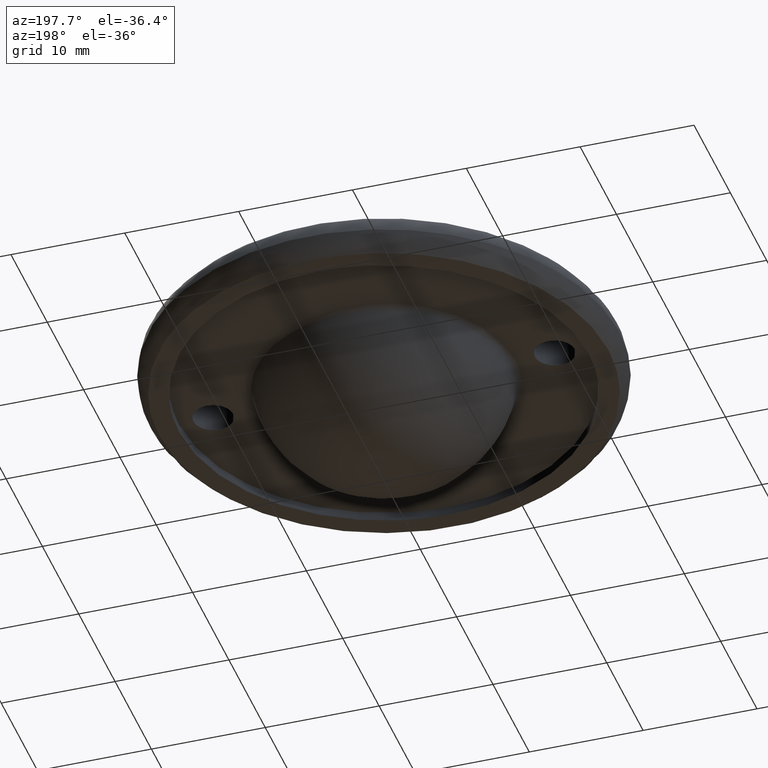
[diagram: clean part render]
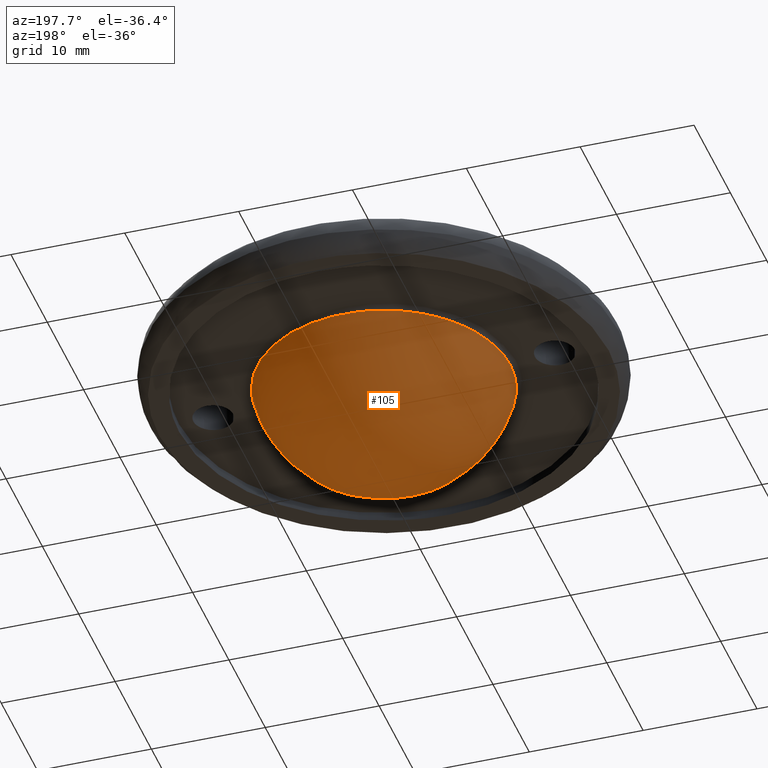
[diagram: same view with one face highlighted and labeled with its STEP entity id]
A machine part, auxiliary view. The second image highlights one B-rep face of the part: STEP entity #105.
In plain terms, the highlighted face is a freeform B-spline surface patch.
Its self-contained STEP definition (entity closure, byte-faithful):
#5=CARTESIAN_POINT('',(-7.978826325178979,7.978826031782090,5.018244158507591));
#6=CARTESIAN_POINT('',(-5.627348453053467,11.254697259605180,1.093161928690669));
#7=CARTESIAN_POINT('',(5.627348521134625,11.254697259605157,1.093162115942437));
#8=CARTESIAN_POINT('',(7.978826262651791,7.978826031782055,5.018244424005513));
#9=CARTESIAN_POINT('',(-11.254696940147511,5.627348772511203,1.093161050047696));
#10=CARTESIAN_POINT('',(-9.547110129751763,9.547111915838805,-8.299998827016179));
#11=CARTESIAN_POINT('',(9.547110510393251,9.547111915838761,-8.299998509333118));
#12=CARTESIAN_POINT('',(11.254697008228675,5.627348772511151,1.093161424551232));
#13=CARTESIAN_POINT('',(-11.254696940147511,-5.627348201676780,1.093159480013511));
#14=CARTESIAN_POINT('',(-9.547110129751763,-9.547108724306025,-8.300001490666670));
#15=CARTESIAN_POINT('',(9.547110510393251,-9.547108724306069,-8.300001172983610));
#16=CARTESIAN_POINT('',(11.254697008228675,-5.627348201676832,1.093159854517047));
#17=CARTESIAN_POINT('',(-7.978826325178979,-7.978826556048523,5.018241932409446));
#18=CARTESIAN_POINT('',(-5.627348453053467,-11.254696688770787,1.093158788622306));
#19=CARTESIAN_POINT('',(5.627348521134625,-11.254696688770812,1.093158975874074));
#20=CARTESIAN_POINT('',(7.978826262651791,-7.978826556048560,5.018242197907369));
#28=(BOUNDED_SURFACE()B_SPLINE_SURFACE(2,2,((#5,#9,#13,#17),(#6,#10,#14,#18),(#7,#11,#15,#19),(#8,#12,#16,#20)),.UNSPECIFIED.,.F.,.F.,.U.)B_SPLINE_SURFACE_WITH_KNOTS((3,1,3),(3,1,3),(0.0,14.161932889601809,28.323865779203629),(0.0,14.161932889601820,28.323865779203629),.UNSPECIFIED.)GEOMETRIC_REPRESENTATION_ITEM()RATIONAL_B_SPLINE_SURFACE(((2.393111459852958,1.696555729926479,1.696555729926479,2.393111459852958),(1.696555729926479,1.0,1.0,1.696555729926479),(1.696555729926479,1.0,1.0,1.696555729926479),(2.393111459852958,1.696555729926479,1.696555729926479,2.393111459852958)))REPRESENTATION_ITEM('')SURFACE());
#29=CARTESIAN_POINT('',(-11.111008682785920,0.0,0.418901054543620));
#30=VERTEX_POINT('',#29);
#31=CARTESIAN_POINT('',(-10.795808709323371,2.627742430968604,0.418901426358730));
#32=VERTEX_POINT('',#31);
#33=CARTESIAN_POINT('',(-11.111008682785920,0.0,0.418901054543620));
#34=CARTESIAN_POINT('',(-11.111166298497460,0.884308275972317,0.418901177892286));
#35=CARTESIAN_POINT('',(-11.005028361020310,1.768548853188827,0.418901303010024));
#36=CARTESIAN_POINT('',(-10.795808709323371,2.627742430968604,0.418901426358730));
#37=B_SPLINE_CURVE_WITH_KNOTS('',3,(#33,#34,#35,#36),.UNSPECIFIED.,.F.,.U.,(4,4),(7.331340E-010,2.652882171507486),.UNSPECIFIED.);
#38=EDGE_CURVE('',#30,#32,#37,.T.);
#39=ORIENTED_EDGE('',*,*,#38,.T.);
#40=CARTESIAN_POINT('',(11.111008682785920,0.0,0.418901054543620));
#41=VERTEX_POINT('',#40);
#42=CARTESIAN_POINT('',(-10.795808709323371,2.627742430968604,0.418901426358730));
#43=CARTESIAN_POINT('',(-10.632004407543450,3.301041703677720,0.418901424969294));
#44=CARTESIAN_POINT('',(-10.198439614929480,4.556997961496044,0.418901420235664));
#45=CARTESIAN_POINT('',(-9.363781159218885,6.046042253990842,0.418901409258806));
#46=CARTESIAN_POINT('',(-8.501916358289046,7.186830405100512,0.418901397127786));
#47=CARTESIAN_POINT('',(-7.493378854738742,8.259389316225596,0.418901382405732));
#48=CARTESIAN_POINT('',(-6.219503107531087,9.265907034074539,0.418901363111526));
#49=CARTESIAN_POINT('',(-4.526509581445540,10.206493252279911,0.418901336672401));
#50=CARTESIAN_POINT('',(-3.032939788227789,10.729869619460400,0.418901312732659));
#51=CARTESIAN_POINT('',(-1.527806156516755,11.027480929013480,0.418901288146311));
#52=CARTESIAN_POINT('',(-0.081419047186149,11.154527457193300,0.418901264200581));
#53=CARTESIAN_POINT('',(1.727526684426739,11.035859753288729,0.418901233695433));
#54=CARTESIAN_POINT('',(3.650737032564044,10.556817728525850,0.418901200555167));
#55=CARTESIAN_POINT('',(5.477047260891141,9.735335765841940,0.418901168348933));
#56=CARTESIAN_POINT('',(6.920114994678916,8.745276689960246,0.418901142216715));
#57=CARTESIAN_POINT('',(8.137299871194497,7.614259456548853,0.418901119581030));
#58=CARTESIAN_POINT('',(9.060990866343213,6.492483046452280,0.418901101874583));
#59=CARTESIAN_POINT('',(9.940697677338372,5.057525181443659,0.418901084275510));
#60=CARTESIAN_POINT('',(10.621574079646880,3.445848575227395,0.418901069648586));
#61=CARTESIAN_POINT('',(11.029045049547699,1.679857507895767,0.418901059286474));
#62=CARTESIAN_POINT('',(11.111024369620990,0.524955746898221,0.418901055596934));
#63=CARTESIAN_POINT('',(11.111008682785920,0.0,0.418901054543620));
#64=B_SPLINE_CURVE_WITH_KNOTS('',3,(#42,#43,#44,#45,#46,#47,#48,#49,#50,#51,#52,#53,#54,#55,#56,#57,#58,#59,#60,#61,#62,#63),.UNSPECIFIED.,.F.,.U.,(4,1,1,1,1,1,1,1,1,1,1,1,1,1,1,1,1,1,1,4),(0.000000081397502,2.078802204084028,3.968679527519033,5.102589448640725,6.362491169873255,8.378335634047300,9.953215088075268,12.158054304267360,13.102961562322120,14.551845030299230,16.504675917008619,18.520519800053080,20.473349458128251,22.489206142806768,23.749108187286499,25.449980241264210,26.835866677686781,28.788730875546982,30.678558310027391,32.253430500167539),.UNSPECIFIED.);
#65=EDGE_CURVE('',#32,#41,#64,.T.);
#66=ORIENTED_EDGE('',*,*,#65,.T.);
#67=CARTESIAN_POINT('',(10.795808709323371,-2.627742430968603,0.418901426358730));
#68=VERTEX_POINT('',#67);
#69=CARTESIAN_POINT('',(11.111008682785920,0.0,0.418901054543620));
#70=CARTESIAN_POINT('',(11.111098823628170,-0.884300373517483,0.418901177892311));
#71=CARTESIAN_POINT('',(11.005093366736540,-1.768557064769295,0.418901303010083));
#72=CARTESIAN_POINT('',(10.795808709323371,-2.627742430968603,0.418901426358730));
#73=B_SPLINE_CURVE_WITH_KNOTS('',3,(#69,#70,#71,#72),.UNSPECIFIED.,.F.,.U.,(4,4),(7.331504E-010,2.652882171507484),.UNSPECIFIED.);
#74=EDGE_CURVE('',#41,#68,#73,.T.);
#75=ORIENTED_EDGE('',*,*,#74,.T.);
#76=CARTESIAN_POINT('',(10.795808709323371,-2.627742430968603,0.418901426358730));
#77=CARTESIAN_POINT('',(10.587395935344690,-3.484706952607528,0.418901424591529));
#78=CARTESIAN_POINT('',(10.105744251333670,-4.772112551693649,0.418901419116434));
#79=CARTESIAN_POINT('',(9.237088601520011,-6.214140796045172,0.418901407476380));
#80=CARTESIAN_POINT('',(8.321594227898068,-7.419043865678181,0.418901394576720));
#81=CARTESIAN_POINT('',(7.154224108153009,-8.578736663151689,0.418901377371975));
#82=CARTESIAN_POINT('',(5.696962096422492,-9.583085098693269,0.418901355005040));
#83=CARTESIAN_POINT('',(4.228016123272507,-10.314076492250200,0.418901331893971));
#84=CARTESIAN_POINT('',(2.530053793905917,-10.882235767581889,0.418901304624256));
#85=CARTESIAN_POINT('',(0.858293681609128,-11.120249115051790,0.418901277130320));
#86=CARTESIAN_POINT('',(-0.739197506858785,-11.110586692321201,0.418901250381975));
#87=CARTESIAN_POINT('',(-1.951222189687343,-10.965219478912511,0.418901229810830));
#88=CARTESIAN_POINT('',(-3.197490267773043,-10.662281453299210,0.418901208350471));
#89=CARTESIAN_POINT('',(-4.326175147560560,-10.258793222583289,0.418901188655722));
#90=CARTESIAN_POINT('',(-5.517047268649987,-9.677834632765240,0.418901167564241));
#91=CARTESIAN_POINT('',(-6.609542924940199,-8.964221931644644,0.418901147852604));
#92=CARTESIAN_POINT('',(-7.576300984079796,-8.153740736310736,0.418901130050264));
#93=CARTESIAN_POINT('',(-8.367547789642325,-7.339473942182742,0.418901115177087));
#94=CARTESIAN_POINT('',(-9.241294790243416,-6.234452743564111,0.418901098339887));
#95=CARTESIAN_POINT('',(-10.008707948085730,-4.925036869004226,0.418901082871681));
#96=CARTESIAN_POINT('',(-10.550942982974529,-3.555450983974928,0.418901071050328));
#97=CARTESIAN_POINT('',(-10.982724612005169,-1.973770239875407,0.418901060651404));
#98=CARTESIAN_POINT('',(-11.111178293386640,-0.818945560752853,0.418901056184395));
#99=CARTESIAN_POINT('',(-11.111008682785920,0.0,0.418901054543620));
#100=B_SPLINE_CURVE_WITH_KNOTS('',3,(#76,#77,#78,#79,#80,#81,#82,#83,#84,#85,#86,#87,#88,#89,#90,#91,#92,#93,#94,#95,#96,#97,#98,#99),.UNSPECIFIED.,.F.,.U.,(4,1,1,1,1,1,1,1,1,1,1,1,1,1,1,1,1,1,1,1,1,4),(0.000000081410150,2.645783052128760,4.094662428511281,5.039585017467640,7.181428741650691,9.008288572575818,10.331190839324110,12.095046899626000,14.362861742956150,15.370801358291070,16.882643118732879,18.016554475901181,19.213468610618470,20.473349458129938,21.985246018785858,23.119158246313599,24.253068690937170,25.386980214732670,27.339824892714550,28.788730875547010,29.796645688386558,32.253430500167553),.UNSPECIFIED.);
#101=EDGE_CURVE('',#68,#30,#100,.T.);
#102=ORIENTED_EDGE('',*,*,#101,.T.);
#103=EDGE_LOOP('',(#39,#66,#75,#102));
#104=FACE_OUTER_BOUND('',#103,.T.);
#105=ADVANCED_FACE('',(#104),#28,.T.);